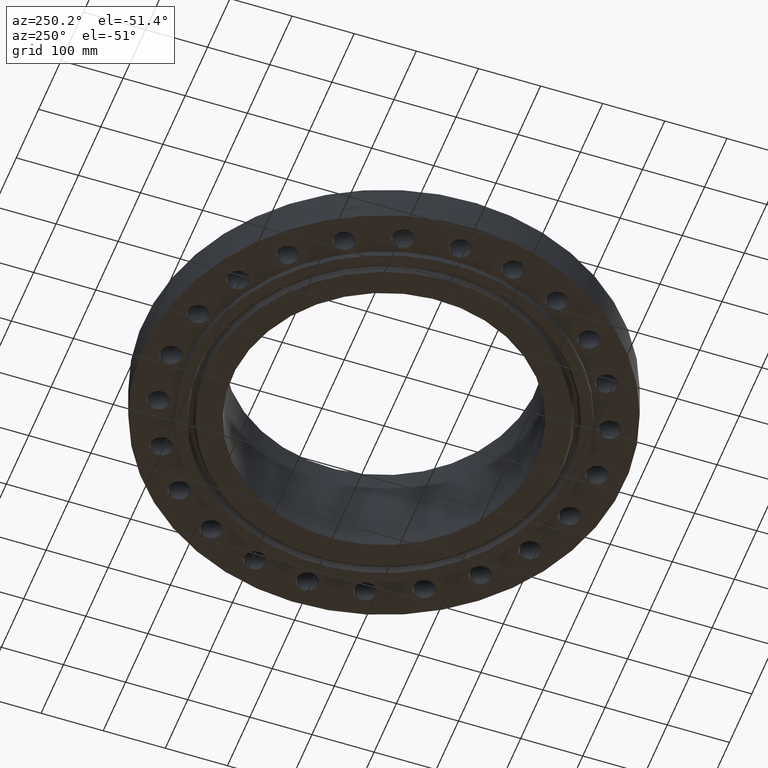
[diagram: clean part render]
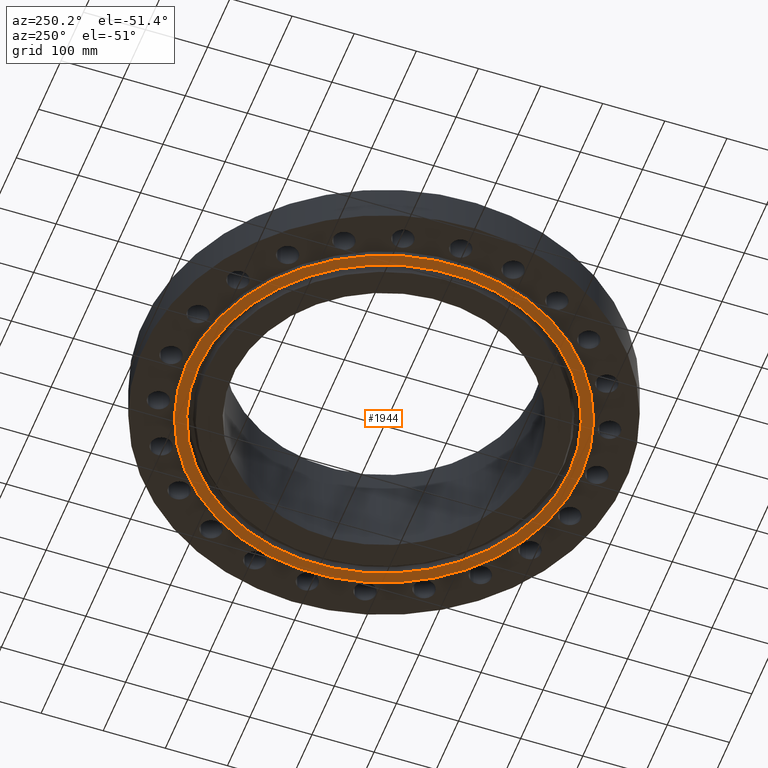
[diagram: same view with one face highlighted and labeled with its STEP entity id]
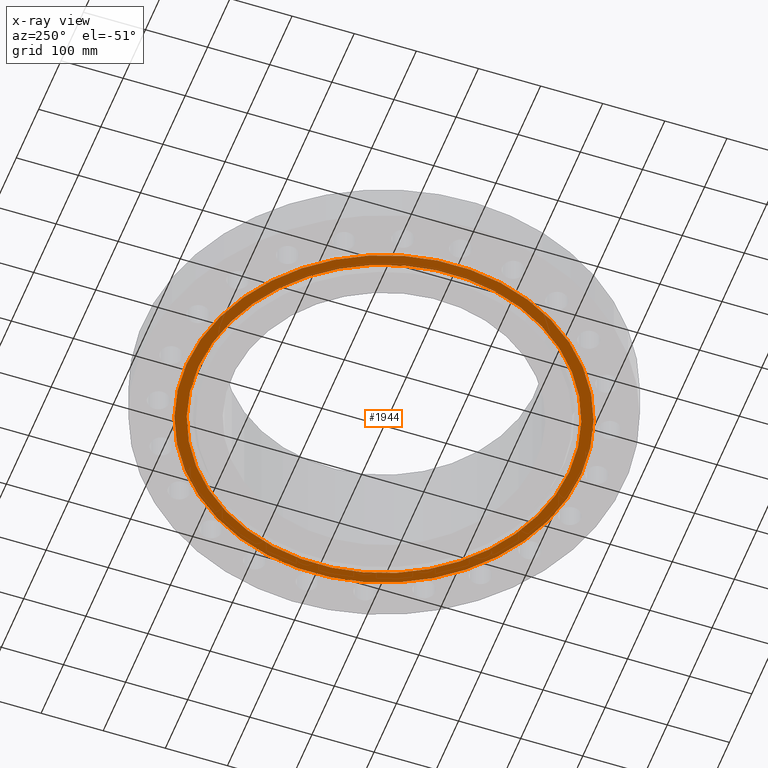
[diagram: x-ray of the same camera — body ghosted, the highlighted face saturated]
A machine part, auxiliary view. The second image highlights one B-rep face of the part: STEP entity #1944.
The next image is the same camera in x-ray: the body ghosted, the highlighted face saturated — about 0% of this face is hidden behind the body in this view.
In plain terms, the highlighted planar face has unit normal (0, 0, -1).
Its self-contained STEP definition (entity closure, byte-faithful):
#446=AXIS2_PLACEMENT_3D('Circle Axis2P3D',#444,#445,$) ;
#481=AXIS2_PLACEMENT_3D('Circle Axis2P3D',#479,#480,$) ;
#1920=AXIS2_PLACEMENT_3D('Plane Axis2P3D',#1917,#1918,#1919) ;
#1928=AXIS2_PLACEMENT_3D('Circle Axis2P3D',#1926,#1927,$) ;
#1937=AXIS2_PLACEMENT_3D('Circle Axis2P3D',#1935,#1936,$) ;
#444=CARTESIAN_POINT('Axis2P3D Location',(0.,0.,-0.375000000002)) ;
#448=CARTESIAN_POINT('Vertex',(-5.99281923258,-10.9697820237,-0.375000000002)) ;
#450=CARTESIAN_POINT('Vertex',(5.99281923258,10.9697820237,-0.375000000002)) ;
#479=CARTESIAN_POINT('Axis2P3D Location',(0.,0.,-0.375000000002)) ;
#1917=CARTESIAN_POINT('Axis2P3D Location',(0.,9.62500000004,-0.375000000001)) ;
#1926=CARTESIAN_POINT('Axis2P3D Location',(2.79741234551E-016,1.1189649382E-015,-0.375000000001)) ;
#1930=CARTESIAN_POINT('Vertex',(5.64068117447,-10.325197632,-0.375000000001)) ;
#1932=CARTESIAN_POINT('Vertex',(-5.64068117447,10.325197632,-0.375000000001)) ;
#1935=CARTESIAN_POINT('Axis2P3D Location',(8.39223703654E-016,-1.1189649382E-015,-0.375000000001)) ;
#445=DIRECTION('Axis2P3D Direction',(0.,0.,-0.0393700787402)) ;
#480=DIRECTION('Axis2P3D Direction',(0.,0.,-0.0393700787402)) ;
#1918=DIRECTION('Axis2P3D Direction',(0.,0.,-0.0393700787402)) ;
#1919=DIRECTION('Axis2P3D XDirection',(0.0393700787402,0.,0.)) ;
#1927=DIRECTION('Axis2P3D Direction',(0.,0.,-0.0393700787402)) ;
#1936=DIRECTION('Axis2P3D Direction',(0.,0.,-0.0393700787402)) ;
#1923=ORIENTED_EDGE('',*,*,#452,.T.) ;
#1924=ORIENTED_EDGE('',*,*,#483,.T.) ;
#1941=ORIENTED_EDGE('',*,*,#1934,.F.) ;
#1942=ORIENTED_EDGE('',*,*,#1939,.F.) ;
#1943=FACE_BOUND('',#1940,.T.) ;
#1944=ADVANCED_FACE('PartBody',(#1925,#1943),#1921,.T.) ;
#447=CIRCLE('generated circle',#446,12.5000000001) ;
#482=CIRCLE('generated circle',#481,12.5000000001) ;
#1929=CIRCLE('generated circle',#1928,11.7655) ;
#1938=CIRCLE('generated circle',#1937,11.7655) ;
#452=EDGE_CURVE('',#449,#451,#447,.T.) ;
#483=EDGE_CURVE('',#451,#449,#482,.T.) ;
#1934=EDGE_CURVE('',#1931,#1933,#1929,.T.) ;
#1939=EDGE_CURVE('',#1933,#1931,#1938,.T.) ;
#1922=EDGE_LOOP('',(#1923,#1924)) ;
#1940=EDGE_LOOP('',(#1941,#1942)) ;
#1925=FACE_OUTER_BOUND('',#1922,.T.) ;
#1921=PLANE('',#1920) ;
#449=VERTEX_POINT('',#448) ;
#451=VERTEX_POINT('',#450) ;
#1931=VERTEX_POINT('',#1930) ;
#1933=VERTEX_POINT('',#1932) ;